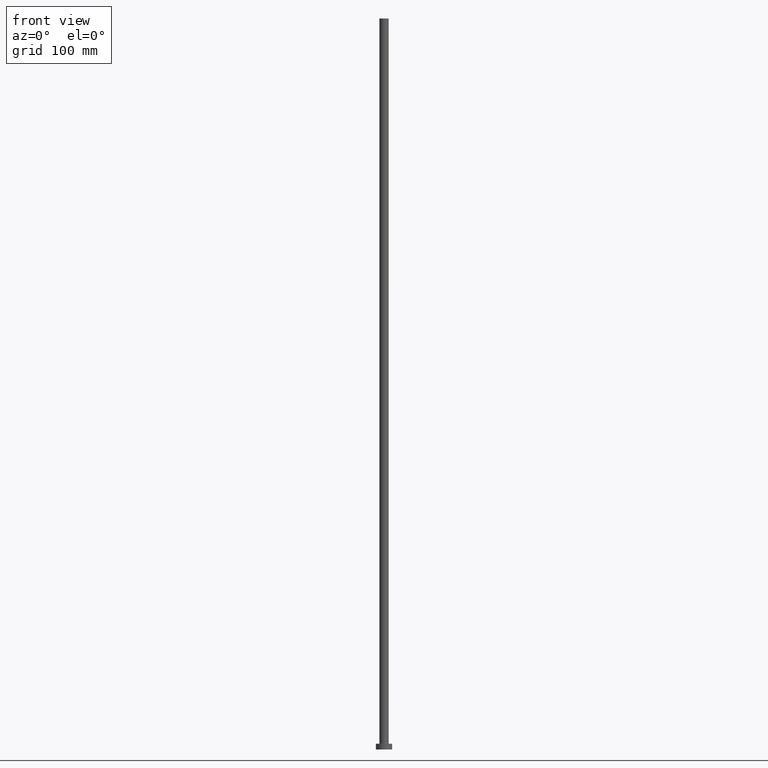
[diagram: clean part render]
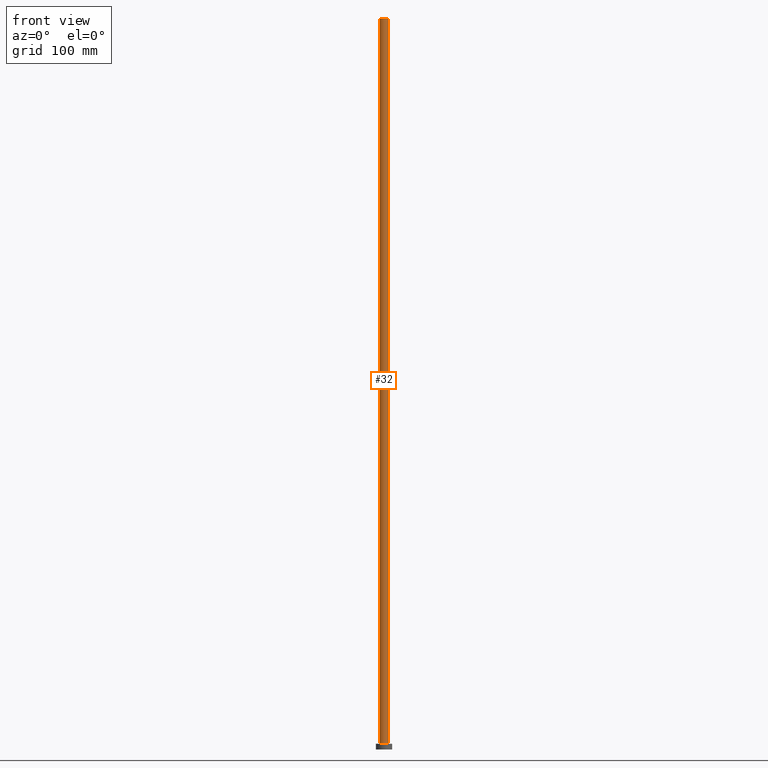
[diagram: same view with one face highlighted and labeled with its STEP entity id]
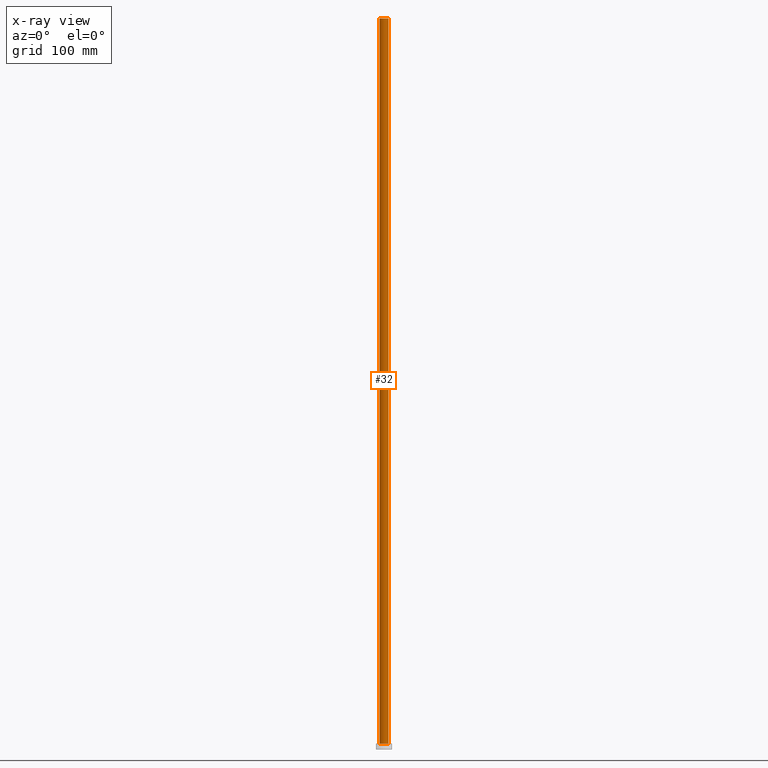
[diagram: x-ray of the same camera — body ghosted, the highlighted face saturated]
A machine part, front view. The second image highlights one B-rep face of the part: STEP entity #32.
The next image is the same camera in x-ray: the body ghosted, the highlighted face saturated — about 0% of this face is hidden behind the body in this view.
In plain terms, the highlighted cylindrical surface (edge-blend (fillet) strip) has radius 4 mm, axis along (-0, -0, -1).
Its self-contained STEP definition (entity closure, byte-faithful):
#11 = VERTEX_POINT ( 'NONE', #140 ) ;
#22 = AXIS2_PLACEMENT_3D ( 'NONE', #96, #251, #190 ) ;
#32 = ADVANCED_FACE ( 'NONE', ( #150 ), #169, .T. ) ;
#33 = DIRECTION ( 'NONE',  ( -0.000000000000000000, -0.000000000000000000, -1.000000000000000000 ) ) ;
#36 = AXIS2_PLACEMENT_3D ( 'NONE', #211, #81, #235 ) ;
#38 = CARTESIAN_POINT ( 'NONE',  ( 0.000000000000000000, 0.000000000000000000, 630.0000000000000000 ) ) ;
#39 = CIRCLE ( 'NONE', #83, 4.000000000000000000 ) ;
#57 = DIRECTION ( 'NONE',  ( 0.000000000000000000, 0.000000000000000000, 1.000000000000000000 ) ) ;
#60 = LINE ( 'NONE', #209, #250 ) ;
#61 = EDGE_CURVE ( 'NONE', #125, #11, #60, .T. ) ;
#79 = VERTEX_POINT ( 'NONE', #151 ) ;
#81 = DIRECTION ( 'NONE',  ( -0.000000000000000000, -0.000000000000000000, -1.000000000000000000 ) ) ;
#82 = EDGE_CURVE ( 'NONE', #11, #117, #238, .T. ) ;
#83 = AXIS2_PLACEMENT_3D ( 'NONE', #38, #57, #130 ) ;
#87 = ORIENTED_EDGE ( 'NONE', *, *, #174, .F. ) ;
#96 = CARTESIAN_POINT ( 'NONE',  ( 0.000000000000000000, 0.000000000000000000, 5.000000000000000000 ) ) ;
#117 = VERTEX_POINT ( 'NONE', #225 ) ;
#125 = VERTEX_POINT ( 'NONE', #135 ) ;
#130 = DIRECTION ( 'NONE',  ( 1.000000000000000000, 0.000000000000000000, 0.000000000000000000 ) ) ;
#135 = CARTESIAN_POINT ( 'NONE',  ( -4.000000000000000000, 0.000000000000000000, 630.0000000000000000 ) ) ;
#140 = CARTESIAN_POINT ( 'NONE',  ( -4.000000000000000000, 0.000000000000000000, 5.000000000000000000 ) ) ;
#150 = FACE_OUTER_BOUND ( 'NONE', #224, .T. ) ;
#151 = CARTESIAN_POINT ( 'NONE',  ( 4.000000000000000000, 4.898587196589412829E-16, 630.0000000000000000 ) ) ;
#166 = EDGE_CURVE ( 'NONE', #125, #79, #39, .T. ) ;
#169 = CYLINDRICAL_SURFACE ( 'NONE', #36, 4.000000000000000000 ) ;
#174 = EDGE_CURVE ( 'NONE', #79, #117, #200, .T. ) ;
#185 = VECTOR ( 'NONE', #247, 1000.000000000000000 ) ;
#190 = DIRECTION ( 'NONE',  ( 1.000000000000000000, 0.000000000000000000, 0.000000000000000000 ) ) ;
#199 = ORIENTED_EDGE ( 'NONE', *, *, #166, .F. ) ;
#200 = LINE ( 'NONE', #222, #185 ) ;
#209 = CARTESIAN_POINT ( 'NONE',  ( -4.000000000000000000, 0.000000000000000000, 630.0000000000000000 ) ) ;
#211 = CARTESIAN_POINT ( 'NONE',  ( 0.000000000000000000, 0.000000000000000000, 630.0000000000000000 ) ) ;
#222 = CARTESIAN_POINT ( 'NONE',  ( 4.000000000000000000, 4.898587196589412829E-16, 630.0000000000000000 ) ) ;
#224 = EDGE_LOOP ( 'NONE', ( #87, #199, #245, #252 ) ) ;
#225 = CARTESIAN_POINT ( 'NONE',  ( 4.000000000000000000, 4.898587196589412829E-16, 5.000000000000000000 ) ) ;
#235 = DIRECTION ( 'NONE',  ( -1.000000000000000000, 0.000000000000000000, 0.000000000000000000 ) ) ;
#238 = CIRCLE ( 'NONE', #22, 4.000000000000000000 ) ;
#245 = ORIENTED_EDGE ( 'NONE', *, *, #61, .T. ) ;
#247 = DIRECTION ( 'NONE',  ( -0.000000000000000000, -0.000000000000000000, -1.000000000000000000 ) ) ;
#250 = VECTOR ( 'NONE', #33, 1000.000000000000000 ) ;
#251 = DIRECTION ( 'NONE',  ( 0.000000000000000000, 0.000000000000000000, 1.000000000000000000 ) ) ;
#252 = ORIENTED_EDGE ( 'NONE', *, *, #82, .T. ) ;